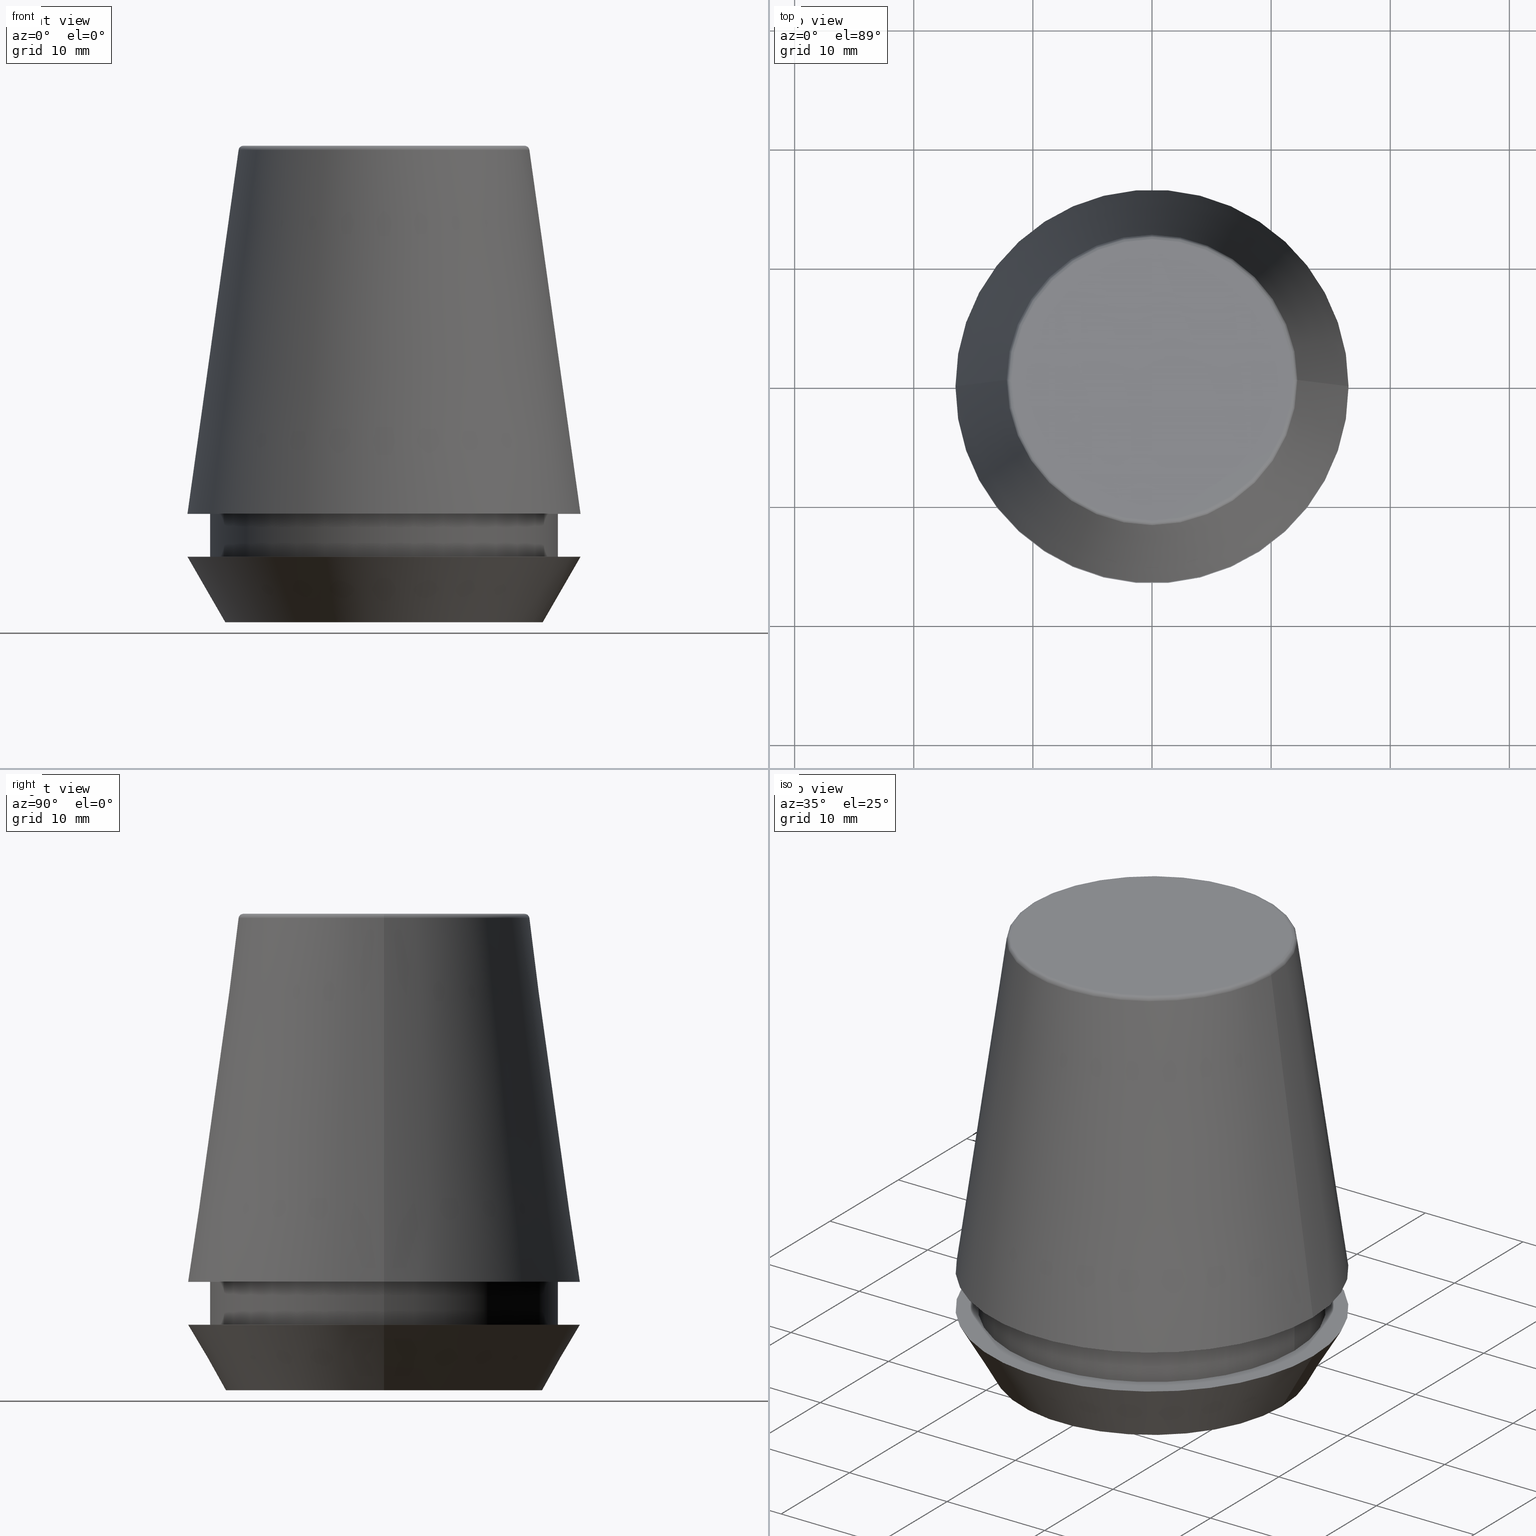
[diagram: canonical four-view strip — front | top / right | iso, engineering-drawing reading convention]
A machine part, canonical four-view strip (front | top / right | iso — engineering-drawing reading convention). The complete STEP part file that produces these views, byte-faithful:
ISO-10303-21;
HEADER;
FILE_DESCRIPTION (( 'STEP AP203' ),
    '1' );
FILE_NAME ('TAP COLLET ER 32G  7.0 X 5.5.STEP',
    '2019-04-09T10:59:25',
    ( '' ),
    ( '' ),
    'SwSTEP 2.0',
    'SolidWorks 2014',
    '' );
FILE_SCHEMA (( 'CONFIG_CONTROL_DESIGN' ));
ENDSEC;

DATA;
#1 = CIRCLE ( 'NONE', #71, 13.32457351945710200 ) ;
#2 = DIRECTION ( 'NONE',  ( -0.0000000000000000000, -0.0000000000000000000, 1.000000000000000000 ) ) ;
#3 = APPROVAL_DATE_TIME ( #319, #175 ) ;
#4 = ORIENTED_EDGE ( 'NONE', *, *, #289, .F. ) ;
#5 = ORIENTED_EDGE ( 'NONE', *, *, #40, .T. ) ;
#6 = PERSON_AND_ORGANIZATION_ROLE ( 'design_supplier' ) ;
#7 = CONICAL_SURFACE ( 'NONE', #276, 13.32457351945710200, 0.5235987755982927100 ) ;
#8 = APPROVAL_ROLE ( '' ) ;
#9 = PERSON_AND_ORGANIZATION ( #82, #267 ) ;
#10 = AXIS2_PLACEMENT_3D ( 'NONE', #49, #365, #342 ) ;
#11 = ORIENTED_EDGE ( 'NONE', *, *, #240, .F. ) ;
#12 = VECTOR ( 'NONE', #46, 1000.000000000000000 ) ;
#13 = DIRECTION ( 'NONE',  ( 1.000000000000000000, 0.0000000000000000000, 0.0000000000000000000 ) ) ;
#14 = CARTESIAN_POINT ( 'NONE',  ( 11.80989888411031400, 0.0000000000000000000, 39.60000000000000100 ) ) ;
#15 = DATE_AND_TIME ( #317, #253 ) ;
#16 = CARTESIAN_POINT ( 'NONE',  ( 14.60000000000000000, 0.0000000000000000000, 5.500000000000005300 ) ) ;
#17 = DATE_AND_TIME ( #307, #72 ) ;
#18 = DIRECTION ( 'NONE',  ( -0.0000000000000000000, -0.0000000000000000000, 1.000000000000000000 ) ) ;
#19 = DIRECTION ( 'NONE',  ( 1.000000000000000000, 0.0000000000000000000, 0.0000000000000000000 ) ) ;
#20 = DIRECTION ( 'NONE',  ( -0.0000000000000000000, -0.0000000000000000000, 1.000000000000000000 ) ) ;
#21 = DIRECTION ( 'NONE',  ( -0.0000000000000000000, -0.0000000000000000000, 1.000000000000000000 ) ) ;
#22 = AXIS2_PLACEMENT_3D ( 'NONE', #123, #50, #379 ) ;
#23 = CONICAL_SURFACE ( 'NONE', #377, 13.32457351945710200, 0.5235987755982927100 ) ;
#24 = CARTESIAN_POINT ( 'NONE',  ( 0.0000000000000000000, 0.0000000000000000000, 40.00000000000000700 ) ) ;
#25 = ADVANCED_FACE ( 'NONE', ( #228 ), #297, .F. ) ;
#26 = DATE_AND_TIME ( #114, #34 ) ;
#27 = EDGE_CURVE ( 'NONE', #360, #171, #384, .T. ) ;
#28 = DIRECTION ( 'NONE',  ( 0.0000000000000000000, 0.0000000000000000000, -1.000000000000000000 ) ) ;
#29 = CARTESIAN_POINT ( 'NONE',  ( 0.0000000000000000000, 0.0000000000000000000, 9.099999999999997900 ) ) ;
#30 = DIRECTION ( 'NONE',  ( 1.000000000000000000, 0.0000000000000000000, 0.0000000000000000000 ) ) ;
#31 = AXIS2_PLACEMENT_3D ( 'NONE', #29, #177, #198 ) ;
#32 = PERSON_AND_ORGANIZATION_ROLE ( 'classification_officer' ) ;
#33 = CYLINDRICAL_SURFACE ( 'NONE', #231, 14.60000000000000000 ) ;
#34 = LOCAL_TIME ( 16, 29, 25.00000000000000000, #120 ) ;
#35 = AXIS2_PLACEMENT_3D ( 'NONE', #14, #75, #258 ) ;
#36 = PERSON_AND_ORGANIZATION_ROLE ( 'creator' ) ;
#37 = LINE ( 'NONE', #225, #98 ) ;
#38 = CARTESIAN_POINT ( 'NONE',  ( 0.0000000000000000000, 0.0000000000000000000, 39.65566924038402900 ) ) ;
#39 = ORIENTED_EDGE ( 'NONE', *, *, #368, .T. ) ;
#40 = EDGE_CURVE ( 'NONE', #277, #372, #1, .T. ) ;
#41 = CONICAL_SURFACE ( 'NONE', #364, 16.50032537154048700, 0.1396263401595395900 ) ;
#42 = AXIS2_PLACEMENT_3D ( 'NONE', #24, #44, #226 ) ;
#43 = PERSON_AND_ORGANIZATION_ROLE ( 'design_owner' ) ;
#44 = DIRECTION ( 'NONE',  ( -0.0000000000000000000, -0.0000000000000000000, 1.000000000000000000 ) ) ;
#45 = EDGE_CURVE ( 'NONE', #274, #156, #134, .T. ) ;
#46 = DIRECTION ( 'NONE',  ( 0.1391731009600586900, 1.704378926181473100E-017, -0.9902680687415712500 ) ) ;
#47 = CARTESIAN_POINT ( 'NONE',  ( 16.50032537154048700, 2.020707065114692300E-015, 9.099999999999997900 ) ) ;
#48 = CC_DESIGN_DATE_AND_TIME_ASSIGNMENT ( #17, #69, ( #154 ) ) ;
#49 = CARTESIAN_POINT ( 'NONE',  ( 0.0000000000000000000, 0.0000000000000000000, 39.65566924038402900 ) ) ;
#50 = DIRECTION ( 'NONE',  ( -0.0000000000000000000, -0.0000000000000000000, 1.000000000000000000 ) ) ;
#51 = AXIS2_PLACEMENT_3D ( 'NONE', #218, #2, #155 ) ;
#52 = ADVANCED_FACE ( 'NONE', ( #79, #62 ), #184, .F. ) ;
#53 = CARTESIAN_POINT ( 'NONE',  ( -11.80989888411031400, 1.470550059081603400E-015, 40.00000000000000700 ) ) ;
#54 = DIRECTION ( 'NONE',  ( -0.0000000000000000000, -0.0000000000000000000, 1.000000000000000000 ) ) ;
#55 = AXIS2_PLACEMENT_3D ( 'NONE', #112, #142, #265 ) ;
#56 = CYLINDRICAL_SURFACE ( 'NONE', #78, 14.60000000000000000 ) ;
#57 = ADVANCED_FACE ( 'NONE', ( #70 ), #335, .T. ) ;
#58 = VERTEX_POINT ( 'NONE', #233 ) ;
#59 = DIRECTION ( 'NONE',  ( -0.4999999999999947300, 6.123233995736700700E-017, 0.8660254037844418200 ) ) ;
#60 = DIRECTION ( 'NONE',  ( 1.000000000000000000, 0.0000000000000000000, 0.0000000000000000000 ) ) ;
#61 = APPLICATION_PROTOCOL_DEFINITION ( 'international standard', 'config_control_design', 1994, #281 ) ;
#62 = FACE_BOUND ( 'NONE', #157, .T. ) ;
#63 = LINE ( 'NONE', #84, #214 ) ;
#64 = ORIENTED_EDGE ( 'NONE', *, *, #90, .T. ) ;
#65 = ADVANCED_FACE ( 'NONE', ( #257 ), #41, .T. ) ;
#66 = APPROVAL_STATUS ( 'not_yet_approved' ) ;
#67 = VERTEX_POINT ( 'NONE', #53 ) ;
#68 = CC_DESIGN_DATE_AND_TIME_ASSIGNMENT ( #102, #238, ( #352 ) ) ;
#69 = DATE_TIME_ROLE ( 'creation_date' ) ;
#70 = FACE_OUTER_BOUND ( 'NONE', #260, .T. ) ;
#71 = AXIS2_PLACEMENT_3D ( 'NONE', #320, #275, #108 ) ;
#72 = LOCAL_TIME ( 16, 29, 25.00000000000000000, #145 ) ;
#73 = LINE ( 'NONE', #146, #313 ) ;
#74 = CARTESIAN_POINT ( 'NONE',  ( 13.32457351945710200, 0.0000000000000000000, 0.0000000000000000000 ) ) ;
#75 = DIRECTION ( 'NONE',  ( 0.0000000000000000000, -1.000000000000000000, 0.0000000000000000000 ) ) ;
#76 = EDGE_LOOP ( 'NONE', ( #211, #252 ) ) ;
#77 = APPLICATION_CONTEXT ( 'configuration controlled 3d designs of mechanical parts and assemblies' ) ;
#78 = AXIS2_PLACEMENT_3D ( 'NONE', #191, #20, #107 ) ;
#79 = FACE_OUTER_BOUND ( 'NONE', #322, .T. ) ;
#80 = ADVANCED_FACE ( 'NONE', ( #369 ), #56, .T. ) ;
#81 = DIRECTION ( 'NONE',  ( 1.000000000000000000, 0.0000000000000000000, 0.0000000000000000000 ) ) ;
#82 = PERSON ( 'UNSPECIFIED', 'UNSPECIFIED', 'UNSPECIFIED', ('UNSPECIFIED'), ('UNSPECIFIED'), ('UNSPECIFIED') ) ;
#83 = ORIENTED_EDGE ( 'NONE', *, *, #219, .T. ) ;
#84 = CARTESIAN_POINT ( 'NONE',  ( -14.60000000000000000, 1.787984326755135800E-015, 101.8074564848000400 ) ) ;
#85 = DIRECTION ( 'NONE',  ( 1.000000000000000000, 0.0000000000000000000, 0.0000000000000000000 ) ) ;
#86 = AXIS2_PLACEMENT_3D ( 'NONE', #87, #353, #230 ) ;
#87 = CARTESIAN_POINT ( 'NONE',  ( 0.0000000000000000000, 0.0000000000000000000, 39.60000000000000100 ) ) ;
#88 = DIRECTION ( 'NONE',  ( 0.0000000000000000000, 0.0000000000000000000, -1.000000000000000000 ) ) ;
#89 = AXIS2_PLACEMENT_3D ( 'NONE', #109, #54, #85 ) ;
#90 = EDGE_CURVE ( 'NONE', #202, #360, #284, .T. ) ;
#91 = ORIENTED_EDGE ( 'NONE', *, *, #217, .T. ) ;
#92 = ORIENTED_EDGE ( 'NONE', *, *, #234, .T. ) ;
#93 = PERSON_AND_ORGANIZATION ( #82, #267 ) ;
#94 = AXIS2_PLACEMENT_3D ( 'NONE', #95, #178, #81 ) ;
#95 = CARTESIAN_POINT ( 'NONE',  ( 0.0000000000000000000, 16.50032537154048700, 9.099999999999999600 ) ) ;
#96 = DIRECTION ( 'NONE',  ( 0.0000000000000000000, 0.0000000000000000000, -1.000000000000000000 ) ) ;
#97 = ORIENTED_EDGE ( 'NONE', *, *, #118, .F. ) ;
#98 = VECTOR ( 'NONE', #169, 999.9999999999998900 ) ;
#99 = AXIS2_PLACEMENT_3D ( 'NONE', #194, #348, #261 ) ;
#100 = EDGE_LOOP ( 'NONE', ( #216, #247 ) ) ;
#101 =( LENGTH_UNIT ( ) NAMED_UNIT ( * ) SI_UNIT ( .MILLI., .METRE. ) );
#102 = DATE_AND_TIME ( #203, #300 ) ;
#103 = ORIENTED_EDGE ( 'NONE', *, *, #354, .T. ) ;
#104 = DIRECTION ( 'NONE',  ( 1.000000000000000000, 0.0000000000000000000, 0.0000000000000000000 ) ) ;
#105 = LOCAL_TIME ( 16, 29, 25.00000000000000000, #355 ) ;
#106 = CARTESIAN_POINT ( 'NONE',  ( 16.50032537154048700, 2.020707065114692300E-015, 9.099999999999997900 ) ) ;
#107 = DIRECTION ( 'NONE',  ( 1.000000000000000000, 0.0000000000000000000, 0.0000000000000000000 ) ) ;
#108 = DIRECTION ( 'NONE',  ( 1.000000000000000000, 0.0000000000000000000, 0.0000000000000000000 ) ) ;
#109 = CARTESIAN_POINT ( 'NONE',  ( 0.0000000000000000000, 0.0000000000000000000, 40.00000000000000700 ) ) ;
#110 = AXIS2_PLACEMENT_3D ( 'NONE', #296, #115, #266 ) ;
#111 = CIRCLE ( 'NONE', #334, 12.20600611160694300 ) ;
#112 = CARTESIAN_POINT ( 'NONE',  ( 0.0000000000000000000, 0.0000000000000000000, 9.099999999999997900 ) ) ;
#113 = CARTESIAN_POINT ( 'NONE',  ( -16.50000000000000000, 2.020667218593133100E-015, 5.500000000000005300 ) ) ;
#114 = CALENDAR_DATE ( 2019, 9, 4 ) ;
#115 = DIRECTION ( 'NONE',  ( 1.224646799147353200E-016, 1.000000000000000000, 0.0000000000000000000 ) ) ;
#116 = FACE_OUTER_BOUND ( 'NONE', #100, .T. ) ;
#117 = ORIENTED_EDGE ( 'NONE', *, *, #354, .F. ) ;
#118 = EDGE_CURVE ( 'NONE', #350, #171, #148, .T. ) ;
#119 = FACE_OUTER_BOUND ( 'NONE', #336, .T. ) ;
#120 = COORDINATED_UNIVERSAL_TIME_OFFSET ( 5, 30, .AHEAD. ) ;
#121 = ORIENTED_EDGE ( 'NONE', *, *, #40, .F. ) ;
#122 = AXIS2_PLACEMENT_3D ( 'NONE', #351, #21, #60 ) ;
#123 = CARTESIAN_POINT ( 'NONE',  ( 0.0000000000000000000, 0.0000000000000000000, 5.500000000000005300 ) ) ;
#124 = ORIENTED_EDGE ( 'NONE', *, *, #309, .F. ) ;
#125 = PRODUCT_DEFINITION_FORMATION_WITH_SPECIFIED_SOURCE ( 'ANY', '', #286, .NOT_KNOWN. ) ;
#126 = ADVANCED_FACE ( 'NONE', ( #116 ), #345, .F. ) ;
#127 =( NAMED_UNIT ( * ) SI_UNIT ( $, .STERADIAN. ) SOLID_ANGLE_UNIT ( ) );
#128 = AXIS2_PLACEMENT_3D ( 'NONE', #147, #357, #158 ) ;
#129 = DIRECTION ( 'NONE',  ( -0.1391731009600586900, 0.0000000000000000000, -0.9902680687415712500 ) ) ;
#130 = VERTEX_POINT ( 'NONE', #165 ) ;
#131 =( NAMED_UNIT ( * ) PLANE_ANGLE_UNIT ( ) SI_UNIT ( $, .RADIAN. ) );
#132 = CARTESIAN_POINT ( 'NONE',  ( 0.0000000000000000000, 11.80989888411031400, 40.00000000000000700 ) ) ;
#133 = AXIS2_PLACEMENT_3D ( 'NONE', #192, #18, #254 ) ;
#134 = CIRCLE ( 'NONE', #22, 14.60000000000000000 ) ;
#135 = DIRECTION ( 'NONE',  ( -0.0000000000000000000, -0.0000000000000000000, 1.000000000000000000 ) ) ;
#136 = PERSON_AND_ORGANIZATION ( #82, #267 ) ;
#137 = DIRECTION ( 'NONE',  ( 1.000000000000000000, 0.0000000000000000000, 0.0000000000000000000 ) ) ;
#138 = CIRCLE ( 'NONE', #55, 14.60000000000000000 ) ;
#139 = EDGE_LOOP ( 'NONE', ( #385, #292, #83, #235 ) ) ;
#140 = COORDINATED_UNIVERSAL_TIME_OFFSET ( 5, 30, .AHEAD. ) ;
#141 = EDGE_LOOP ( 'NONE', ( #117, #279 ) ) ;
#142 = DIRECTION ( 'NONE',  ( -0.0000000000000000000, -0.0000000000000000000, 1.000000000000000000 ) ) ;
#143 = AXIS2_PLACEMENT_3D ( 'NONE', #205, #283, #387 ) ;
#144 = CARTESIAN_POINT ( 'NONE',  ( -14.60000000000000000, 1.787984326755135800E-015, 9.099999999999997900 ) ) ;
#145 = COORDINATED_UNIVERSAL_TIME_OFFSET ( 5, 30, .AHEAD. ) ;
#146 = CARTESIAN_POINT ( 'NONE',  ( -16.50032537154048700, 0.0000000000000000000, 9.099999999999997900 ) ) ;
#147 = CARTESIAN_POINT ( 'NONE',  ( 0.0000000000000000000, 0.0000000000000000000, 0.0000000000000000000 ) ) ;
#148 = CIRCLE ( 'NONE', #349, 16.50032537154048700 ) ;
#149 = CC_DESIGN_APPROVAL ( #175, ( #154 ) ) ;
#150 = APPROVAL_ROLE ( '' ) ;
#151 = ORIENTED_EDGE ( 'NONE', *, *, #45, .T. ) ;
#152 = ORIENTED_EDGE ( 'NONE', *, *, #217, .F. ) ;
#153 = ORIENTED_EDGE ( 'NONE', *, *, #256, .F. ) ;
#154 = PRODUCT_DEFINITION ( 'UNKNOWN', '', #125, #167 ) ;
#155 = DIRECTION ( 'NONE',  ( 1.000000000000000000, 0.0000000000000000000, 0.0000000000000000000 ) ) ;
#156 = VERTEX_POINT ( 'NONE', #16 ) ;
#157 = EDGE_LOOP ( 'NONE', ( #92, #375 ) ) ;
#158 = DIRECTION ( 'NONE',  ( 1.000000000000000000, 0.0000000000000000000, 0.0000000000000000000 ) ) ;
#159 =( GEOMETRIC_REPRESENTATION_CONTEXT ( 3 ) GLOBAL_UNCERTAINTY_ASSIGNED_CONTEXT ( ( #172 ) ) GLOBAL_UNIT_ASSIGNED_CONTEXT ( ( #101, #131, #127 ) ) REPRESENTATION_CONTEXT ( 'NONE', 'WORKASPACE' ) );
#160 = EDGE_LOOP ( 'NONE', ( #103, #91, #304, #339 ) ) ;
#161 = APPROVAL ( #305, 'UNSPECIFIED' ) ;
#162 = COORDINATED_UNIVERSAL_TIME_OFFSET ( 5, 30, .AHEAD. ) ;
#163 = CARTESIAN_POINT ( 'NONE',  ( 0.0000000000000000000, 0.0000000000000000000, 9.099999999999997900 ) ) ;
#164 = DIRECTION ( 'NONE',  ( -0.0000000000000000000, -0.0000000000000000000, 1.000000000000000000 ) ) ;
#165 = CARTESIAN_POINT ( 'NONE',  ( 11.80989888411031400, 0.0000000000000000000, 40.00000000000000700 ) ) ;
#166 = VERTEX_POINT ( 'NONE', #113 ) ;
#167 = DESIGN_CONTEXT ( 'detailed design', #77, 'design' ) ;
#168 = CIRCLE ( 'NONE', #99, 16.50000000000000000 ) ;
#169 = DIRECTION ( 'NONE',  ( 0.4999999999999947300, 0.0000000000000000000, 0.8660254037844418200 ) ) ;
#170 = DIRECTION ( 'NONE',  ( -0.0000000000000000000, -0.0000000000000000000, 1.000000000000000000 ) ) ;
#171 = VERTEX_POINT ( 'NONE', #47 ) ;
#172 = UNCERTAINTY_MEASURE_WITH_UNIT (LENGTH_MEASURE( 1.000000000000000100E-005 ), #101, 'distance_accuracy_value', 'NONE');
#173 = APPROVAL_PERSON_ORGANIZATION ( #9, #161, #150 ) ;
#174 = CARTESIAN_POINT ( 'NONE',  ( 16.50000000000000000, 0.0000000000000000000, 5.500000000000005300 ) ) ;
#175 = APPROVAL ( #251, 'UNSPECIFIED' ) ;
#176 = SHAPE_DEFINITION_REPRESENTATION ( #237, #312 ) ;
#177 = DIRECTION ( 'NONE',  ( -0.0000000000000000000, -0.0000000000000000000, 1.000000000000000000 ) ) ;
#178 = DIRECTION ( 'NONE',  ( 0.0000000000000000000, -0.0000000000000000000, 1.000000000000000000 ) ) ;
#179 = ORIENTED_EDGE ( 'NONE', *, *, #27, .F. ) ;
#180 = PERSON_AND_ORGANIZATION_ROLE ( 'creator' ) ;
#181 = CIRCLE ( 'NONE', #110, 0.4000000000000028000 ) ;
#182 = ORIENTED_EDGE ( 'NONE', *, *, #90, .F. ) ;
#183 = ORIENTED_EDGE ( 'NONE', *, *, #367, .T. ) ;
#184 = PLANE ( 'NONE',  #94 ) ;
#185 = VECTOR ( 'NONE', #338, 1000.000000000000000 ) ;
#186 = CC_DESIGN_PERSON_AND_ORGANIZATION_ASSIGNMENT ( #136, #36, ( #154 ) ) ;
#187 = CC_DESIGN_PERSON_AND_ORGANIZATION_ASSIGNMENT ( #326, #43, ( #286 ) ) ;
#188 = FACE_OUTER_BOUND ( 'NONE', #76, .T. ) ;
#189 = ORIENTED_EDGE ( 'NONE', *, *, #219, .F. ) ;
#190 = CIRCLE ( 'NONE', #325, 16.50032537154048700 ) ;
#191 = CARTESIAN_POINT ( 'NONE',  ( 0.0000000000000000000, 0.0000000000000000000, 101.8074564848000400 ) ) ;
#192 = CARTESIAN_POINT ( 'NONE',  ( 0.0000000000000000000, 0.0000000000000000000, 0.0000000000000000000 ) ) ;
#193 = CARTESIAN_POINT ( 'NONE',  ( -12.20600611160694300, 0.0000000000000000000, 39.65566924038402900 ) ) ;
#194 = CARTESIAN_POINT ( 'NONE',  ( 0.0000000000000000000, 0.0000000000000000000, 5.500000000000005300 ) ) ;
#195 = APPROVAL_DATE_TIME ( #26, #330 ) ;
#196 = CARTESIAN_POINT ( 'NONE',  ( -13.32457351945710200, 1.631789631060672300E-015, 0.0000000000000000000 ) ) ;
#197 = CARTESIAN_POINT ( 'NONE',  ( -14.60000000000000000, 1.787984326755135800E-015, 5.500000000000005300 ) ) ;
#198 = DIRECTION ( 'NONE',  ( 1.000000000000000000, 0.0000000000000000000, 0.0000000000000000000 ) ) ;
#199 = CARTESIAN_POINT ( 'NONE',  ( 0.0000000000000000000, 0.0000000000000000000, 0.0000000000000000000 ) ) ;
#200 = CIRCLE ( 'NONE', #302, 14.60000000000000000 ) ;
#201 = SECURITY_CLASSIFICATION_LEVEL ( 'unclassified' ) ;
#202 = VERTEX_POINT ( 'NONE', #193 ) ;
#203 = CALENDAR_DATE ( 2019, 9, 4 ) ;
#204 = ORIENTED_EDGE ( 'NONE', *, *, #118, .T. ) ;
#205 = CARTESIAN_POINT ( 'NONE',  ( 0.0000000000000000000, 0.0000000000000000000, 0.0000000000000000000 ) ) ;
#206 = EDGE_CURVE ( 'NONE', #67, #130, #239, .T. ) ;
#207 = DIRECTION ( 'NONE',  ( -0.0000000000000000000, -0.0000000000000000000, 1.000000000000000000 ) ) ;
#208 = APPROVAL_PERSON_ORGANIZATION ( #255, #175, #8 ) ;
#209 = LINE ( 'NONE', #196, #299 ) ;
#210 = ADVANCED_FACE ( 'NONE', ( #220 ), #33, .T. ) ;
#211 = ORIENTED_EDGE ( 'NONE', *, *, #340, .T. ) ;
#212 = ADVANCED_FACE ( 'NONE', ( #295 ), #7, .T. ) ;
#213 = EDGE_CURVE ( 'NONE', #166, #310, #168, .T. ) ;
#214 = VECTOR ( 'NONE', #370, 1000.000000000000000 ) ;
#215 = ORIENTED_EDGE ( 'NONE', *, *, #289, .T. ) ;
#216 = ORIENTED_EDGE ( 'NONE', *, *, #378, .T. ) ;
#217 = EDGE_CURVE ( 'NONE', #274, #315, #63, .T. ) ;
#218 = CARTESIAN_POINT ( 'NONE',  ( 0.0000000000000000000, 0.0000000000000000000, 5.500000000000005300 ) ) ;
#219 = EDGE_CURVE ( 'NONE', #171, #350, #190, .T. ) ;
#220 = FACE_OUTER_BOUND ( 'NONE', #160, .T. ) ;
#221 = CARTESIAN_POINT ( 'NONE',  ( 0.0000000000000000000, 0.0000000000000000000, 0.0000000000000000000 ) ) ;
#222 = ORIENTED_EDGE ( 'NONE', *, *, #358, .T. ) ;
#223 = CARTESIAN_POINT ( 'NONE',  ( 0.0000000000000000000, 0.0000000000000000000, 9.099999999999997900 ) ) ;
#224 = ORIENTED_EDGE ( 'NONE', *, *, #341, .T. ) ;
#225 = CARTESIAN_POINT ( 'NONE',  ( 13.32457351945710200, 0.0000000000000000000, 0.0000000000000000000 ) ) ;
#226 = DIRECTION ( 'NONE',  ( 1.000000000000000000, 0.0000000000000000000, 0.0000000000000000000 ) ) ;
#227 = APPROVAL_PERSON_ORGANIZATION ( #280, #330, #270 ) ;
#228 = FACE_OUTER_BOUND ( 'NONE', #269, .T. ) ;
#229 = CC_DESIGN_PERSON_AND_ORGANIZATION_ASSIGNMENT ( #93, #32, ( #352 ) ) ;
#230 = DIRECTION ( 'NONE',  ( 1.000000000000000000, 0.0000000000000000000, 0.0000000000000000000 ) ) ;
#231 = AXIS2_PLACEMENT_3D ( 'NONE', #363, #164, #19 ) ;
#232 = DIRECTION ( 'NONE',  ( -1.000000000000000000, 0.0000000000000000000, -0.0000000000000000000 ) ) ;
#233 = CARTESIAN_POINT ( 'NONE',  ( 14.60000000000000000, 0.0000000000000000000, 9.099999999999997900 ) ) ;
#234 = EDGE_CURVE ( 'NONE', #58, #315, #138, .T. ) ;
#235 = ORIENTED_EDGE ( 'NONE', *, *, #358, .F. ) ;
#236 = ORIENTED_EDGE ( 'NONE', *, *, #213, .F. ) ;
#237 = PRODUCT_DEFINITION_SHAPE ( 'NONE', 'NONE',  #154 ) ;
#238 = DATE_TIME_ROLE ( 'classification_date' ) ;
#239 = CIRCLE ( 'NONE', #89, 11.80989888411031400 ) ;
#240 = EDGE_CURVE ( 'NONE', #277, #166, #209, .T. ) ;
#241 = EDGE_LOOP ( 'NONE', ( #39, #346, #301, #153 ) ) ;
#242 = APPROVAL_DATE_TIME ( #15, #161 ) ;
#243 = DIRECTION ( 'NONE',  ( -1.000000000000000000, 0.0000000000000000000, 0.0000000000000000000 ) ) ;
#244 = CARTESIAN_POINT ( 'NONE',  ( -16.50032537154048700, 0.0000000000000000000, 9.099999999999997900 ) ) ;
#245 = LINE ( 'NONE', #343, #185 ) ;
#246 = CC_DESIGN_SECURITY_CLASSIFICATION ( #352, ( #125 ) ) ;
#247 = ORIENTED_EDGE ( 'NONE', *, *, #206, .T. ) ;
#248 = ADVANCED_FACE ( 'NONE', ( #278 ), #329, .T. ) ;
#249 = AXIS2_PLACEMENT_3D ( 'NONE', #323, #88, #232 ) ;
#250 = TOROIDAL_SURFACE ( 'NONE', #86, 11.80989888411031400, 0.4000000000000026900 ) ;
#251 = APPROVAL_STATUS ( 'not_yet_approved' ) ;
#252 = ORIENTED_EDGE ( 'NONE', *, *, #213, .T. ) ;
#253 = LOCAL_TIME ( 16, 29, 25.00000000000000000, #140 ) ;
#254 = DIRECTION ( 'NONE',  ( 1.000000000000000000, 0.0000000000000000000, 0.0000000000000000000 ) ) ;
#255 = PERSON_AND_ORGANIZATION ( #82, #267 ) ;
#256 = EDGE_CURVE ( 'NONE', #372, #310, #37, .T. ) ;
#257 = FACE_OUTER_BOUND ( 'NONE', #139, .T. ) ;
#258 = DIRECTION ( 'NONE',  ( 0.0000000000000000000, 0.0000000000000000000, -1.000000000000000000 ) ) ;
#259 = CARTESIAN_POINT ( 'NONE',  ( 12.20600611160694300, 1.757755848304969800E-015, 39.65566924038402900 ) ) ;
#260 = EDGE_LOOP ( 'NONE', ( #179, #182, #222, #204 ) ) ;
#261 = DIRECTION ( 'NONE',  ( 1.000000000000000000, 0.0000000000000000000, 0.0000000000000000000 ) ) ;
#262 = FACE_OUTER_BOUND ( 'NONE', #241, .T. ) ;
#263 = DIRECTION ( 'NONE',  ( 1.000000000000000000, 0.0000000000000000000, 0.0000000000000000000 ) ) ;
#264 = EDGE_LOOP ( 'NONE', ( #4, #64, #183, #321 ) ) ;
#265 = DIRECTION ( 'NONE',  ( 1.000000000000000000, 0.0000000000000000000, 0.0000000000000000000 ) ) ;
#266 = DIRECTION ( 'NONE',  ( -1.000000000000000000, 1.224646799147352500E-016, 0.0000000000000000000 ) ) ;
#267 = ORGANIZATION ( 'UNSPECIFIED', 'UNSPECIFIED', '' ) ;
#268 = CIRCLE ( 'NONE', #35, 0.4000000000000045200 ) ;
#269 = EDGE_LOOP ( 'NONE', ( #272, #121 ) ) ;
#270 = APPROVAL_ROLE ( '' ) ;
#271 = FACE_BOUND ( 'NONE', #141, .T. ) ;
#272 = ORIENTED_EDGE ( 'NONE', *, *, #368, .F. ) ;
#273 = MANIFOLD_SOLID_BREP ( 'Revolve1', #332 ) ;
#274 = VERTEX_POINT ( 'NONE', #197 ) ;
#275 = DIRECTION ( 'NONE',  ( -0.0000000000000000000, -0.0000000000000000000, 1.000000000000000000 ) ) ;
#276 = AXIS2_PLACEMENT_3D ( 'NONE', #221, #170, #137 ) ;
#277 = VERTEX_POINT ( 'NONE', #294 ) ;
#278 = FACE_OUTER_BOUND ( 'NONE', #264, .T. ) ;
#279 = ORIENTED_EDGE ( 'NONE', *, *, #45, .F. ) ;
#280 = PERSON_AND_ORGANIZATION ( #82, #267 ) ;
#281 = APPLICATION_CONTEXT ( 'configuration controlled 3d designs of mechanical parts and assemblies' ) ;
#282 = AXIS2_PLACEMENT_3D ( 'NONE', #132, #374, #376 ) ;
#283 = DIRECTION ( 'NONE',  ( 0.0000000000000000000, 0.0000000000000000000, 1.000000000000000000 ) ) ;
#284 = CIRCLE ( 'NONE', #10, 12.20600611160694300 ) ;
#285 = PERSON_AND_ORGANIZATION ( #82, #267 ) ;
#286 = PRODUCT ( 'TAP COLLET ER 32G  7.0 X 5.5', 'TAP COLLET ER 32G  7.0 X 5.5', '', ( #288 ) ) ;
#287 = CC_DESIGN_PERSON_AND_ORGANIZATION_ASSIGNMENT ( #285, #180, ( #125 ) ) ;
#288 = MECHANICAL_CONTEXT ( 'NONE', #281, 'mechanical' ) ;
#289 = EDGE_CURVE ( 'NONE', #202, #67, #181, .T. ) ;
#290 = ORIENTED_EDGE ( 'NONE', *, *, #378, .F. ) ;
#291 = ADVANCED_FACE ( 'NONE', ( #119 ), #250, .T. ) ;
#292 = ORIENTED_EDGE ( 'NONE', *, *, #27, .T. ) ;
#293 = CC_DESIGN_PERSON_AND_ORGANIZATION_ASSIGNMENT ( #361, #6, ( #125 ) ) ;
#294 = CARTESIAN_POINT ( 'NONE',  ( -13.32457351945710200, 1.826228424826902600E-015, 0.0000000000000000000 ) ) ;
#295 = FACE_OUTER_BOUND ( 'NONE', #366, .T. ) ;
#296 = CARTESIAN_POINT ( 'NONE',  ( -11.80989888411031400, 1.446295486667959300E-015, 39.60000000000000100 ) ) ;
#297 = PLANE ( 'NONE',  #128 ) ;
#298 = DIRECTION ( 'NONE',  ( -1.000000000000000000, 0.0000000000000000000, 0.0000000000000000000 ) ) ;
#299 = VECTOR ( 'NONE', #59, 999.9999999999998900 ) ;
#300 = LOCAL_TIME ( 16, 29, 25.00000000000000000, #162 ) ;
#301 = ORIENTED_EDGE ( 'NONE', *, *, #340, .F. ) ;
#302 = AXIS2_PLACEMENT_3D ( 'NONE', #337, #371, #13 ) ;
#303 = CIRCLE ( 'NONE', #31, 14.60000000000000000 ) ;
#304 = ORIENTED_EDGE ( 'NONE', *, *, #234, .F. ) ;
#305 = APPROVAL_STATUS ( 'not_yet_approved' ) ;
#306 = DIRECTION ( 'NONE',  ( 1.000000000000000000, 0.0000000000000000000, 0.0000000000000000000 ) ) ;
#307 = CALENDAR_DATE ( 2019, 9, 4 ) ;
#308 = CC_DESIGN_APPROVAL ( #330, ( #352 ) ) ;
#309 = EDGE_CURVE ( 'NONE', #315, #58, #303, .T. ) ;
#310 = VERTEX_POINT ( 'NONE', #174 ) ;
#311 = ORIENTED_EDGE ( 'NONE', *, *, #382, .T. ) ;
#312 = ADVANCED_BREP_SHAPE_REPRESENTATION ( 'TAP COLLET ER 32G  7.0 X 5.5', ( #273, #143 ), #159 ) ;
#313 = VECTOR ( 'NONE', #129, 1000.000000000000000 ) ;
#314 = APPLICATION_PROTOCOL_DEFINITION ( 'international standard', 'config_control_design', 1994, #77 ) ;
#315 = VERTEX_POINT ( 'NONE', #144 ) ;
#316 = DIRECTION ( 'NONE',  ( -0.0000000000000000000, -0.0000000000000000000, 1.000000000000000000 ) ) ;
#317 = CALENDAR_DATE ( 2019, 9, 4 ) ;
#318 = PRODUCT_RELATED_PRODUCT_CATEGORY ( 'detail', '', ( #286 ) ) ;
#319 = DATE_AND_TIME ( #380, #105 ) ;
#320 = CARTESIAN_POINT ( 'NONE',  ( 0.0000000000000000000, 0.0000000000000000000, 0.0000000000000000000 ) ) ;
#321 = ORIENTED_EDGE ( 'NONE', *, *, #206, .F. ) ;
#322 = EDGE_LOOP ( 'NONE', ( #97, #189 ) ) ;
#323 = CARTESIAN_POINT ( 'NONE',  ( 0.0000000000000000000, 16.50000000000000000, 5.500000000000002700 ) ) ;
#324 = DIRECTION ( 'NONE',  ( -0.0000000000000000000, -0.0000000000000000000, 1.000000000000000000 ) ) ;
#325 = AXIS2_PLACEMENT_3D ( 'NONE', #386, #324, #263 ) ;
#326 = PERSON_AND_ORGANIZATION ( #82, #267 ) ;
#327 = ADVANCED_FACE ( 'NONE', ( #271, #188 ), #356, .F. ) ;
#328 = EDGE_LOOP ( 'NONE', ( #152, #151, #311, #124 ) ) ;
#329 = TOROIDAL_SURFACE ( 'NONE', #122, 11.80989888411031400, 0.4000000000000026900 ) ;
#330 = APPROVAL ( #66, 'UNSPECIFIED' ) ;
#331 = ORIENTED_EDGE ( 'NONE', *, *, #256, .T. ) ;
#332 = CLOSED_SHELL ( 'NONE', ( #291, #65, #210, #344, #126, #25, #212, #327, #80, #52, #57, #248 ) ) ;
#333 = CC_DESIGN_APPROVAL ( #161, ( #125 ) ) ;
#334 = AXIS2_PLACEMENT_3D ( 'NONE', #38, #207, #306 ) ;
#335 = CONICAL_SURFACE ( 'NONE', #373, 16.50032537154048700, 0.1396263401595395900 ) ;
#336 = EDGE_LOOP ( 'NONE', ( #224, #215, #290, #362 ) ) ;
#337 = CARTESIAN_POINT ( 'NONE',  ( 0.0000000000000000000, 0.0000000000000000000, 5.500000000000005300 ) ) ;
#338 = DIRECTION ( 'NONE',  ( -0.0000000000000000000, -0.0000000000000000000, 1.000000000000000000 ) ) ;
#339 = ORIENTED_EDGE ( 'NONE', *, *, #382, .F. ) ;
#340 = EDGE_CURVE ( 'NONE', #310, #166, #381, .T. ) ;
#341 = EDGE_CURVE ( 'NONE', #360, #202, #111, .T. ) ;
#342 = DIRECTION ( 'NONE',  ( 1.000000000000000000, 0.0000000000000000000, 0.0000000000000000000 ) ) ;
#343 = CARTESIAN_POINT ( 'NONE',  ( 14.60000000000000000, 0.0000000000000000000, 101.8074564848000400 ) ) ;
#344 = ADVANCED_FACE ( 'NONE', ( #262 ), #23, .T. ) ;
#345 = PLANE ( 'NONE',  #282 ) ;
#346 = ORIENTED_EDGE ( 'NONE', *, *, #240, .T. ) ;
#347 = CIRCLE ( 'NONE', #133, 13.32457351945710200 ) ;
#348 = DIRECTION ( 'NONE',  ( -0.0000000000000000000, -0.0000000000000000000, 1.000000000000000000 ) ) ;
#349 = AXIS2_PLACEMENT_3D ( 'NONE', #163, #316, #104 ) ;
#350 = VERTEX_POINT ( 'NONE', #244 ) ;
#351 = CARTESIAN_POINT ( 'NONE',  ( 0.0000000000000000000, 0.0000000000000000000, 39.60000000000000100 ) ) ;
#352 = SECURITY_CLASSIFICATION ( '', '', #201 ) ;
#353 = DIRECTION ( 'NONE',  ( -0.0000000000000000000, -0.0000000000000000000, 1.000000000000000000 ) ) ;
#354 = EDGE_CURVE ( 'NONE', #156, #274, #200, .T. ) ;
#355 = COORDINATED_UNIVERSAL_TIME_OFFSET ( 5, 30, .AHEAD. ) ;
#356 = PLANE ( 'NONE',  #249 ) ;
#357 = DIRECTION ( 'NONE',  ( 0.0000000000000000000, -0.0000000000000000000, 1.000000000000000000 ) ) ;
#358 = EDGE_CURVE ( 'NONE', #202, #350, #73, .T. ) ;
#359 = CIRCLE ( 'NONE', #42, 11.80989888411031400 ) ;
#360 = VERTEX_POINT ( 'NONE', #259 ) ;
#361 = PERSON_AND_ORGANIZATION ( #82, #267 ) ;
#362 = ORIENTED_EDGE ( 'NONE', *, *, #367, .F. ) ;
#363 = CARTESIAN_POINT ( 'NONE',  ( 0.0000000000000000000, 0.0000000000000000000, 101.8074564848000400 ) ) ;
#364 = AXIS2_PLACEMENT_3D ( 'NONE', #383, #28, #243 ) ;
#365 = DIRECTION ( 'NONE',  ( -0.0000000000000000000, -0.0000000000000000000, 1.000000000000000000 ) ) ;
#366 = EDGE_LOOP ( 'NONE', ( #11, #5, #331, #236 ) ) ;
#367 = EDGE_CURVE ( 'NONE', #360, #130, #268, .T. ) ;
#368 = EDGE_CURVE ( 'NONE', #372, #277, #347, .T. ) ;
#369 = FACE_OUTER_BOUND ( 'NONE', #328, .T. ) ;
#370 = DIRECTION ( 'NONE',  ( -0.0000000000000000000, -0.0000000000000000000, 1.000000000000000000 ) ) ;
#371 = DIRECTION ( 'NONE',  ( -0.0000000000000000000, -0.0000000000000000000, 1.000000000000000000 ) ) ;
#372 = VERTEX_POINT ( 'NONE', #74 ) ;
#373 = AXIS2_PLACEMENT_3D ( 'NONE', #223, #96, #298 ) ;
#374 = DIRECTION ( 'NONE',  ( 0.0000000000000000000, 0.0000000000000000000, -1.000000000000000000 ) ) ;
#375 = ORIENTED_EDGE ( 'NONE', *, *, #309, .T. ) ;
#376 = DIRECTION ( 'NONE',  ( -1.000000000000000000, 0.0000000000000000000, -0.0000000000000000000 ) ) ;
#377 = AXIS2_PLACEMENT_3D ( 'NONE', #199, #135, #30 ) ;
#378 = EDGE_CURVE ( 'NONE', #130, #67, #359, .T. ) ;
#379 = DIRECTION ( 'NONE',  ( 1.000000000000000000, 0.0000000000000000000, 0.0000000000000000000 ) ) ;
#380 = CALENDAR_DATE ( 2019, 9, 4 ) ;
#381 = CIRCLE ( 'NONE', #51, 16.50000000000000000 ) ;
#382 = EDGE_CURVE ( 'NONE', #156, #58, #245, .T. ) ;
#383 = CARTESIAN_POINT ( 'NONE',  ( 0.0000000000000000000, 0.0000000000000000000, 9.099999999999997900 ) ) ;
#384 = LINE ( 'NONE', #106, #12 ) ;
#385 = ORIENTED_EDGE ( 'NONE', *, *, #341, .F. ) ;
#386 = CARTESIAN_POINT ( 'NONE',  ( 0.0000000000000000000, 0.0000000000000000000, 9.099999999999997900 ) ) ;
#387 = DIRECTION ( 'NONE',  ( 1.000000000000000000, 0.0000000000000000000, 0.0000000000000000000 ) ) ;
ENDSEC;
END-ISO-10303-21;
